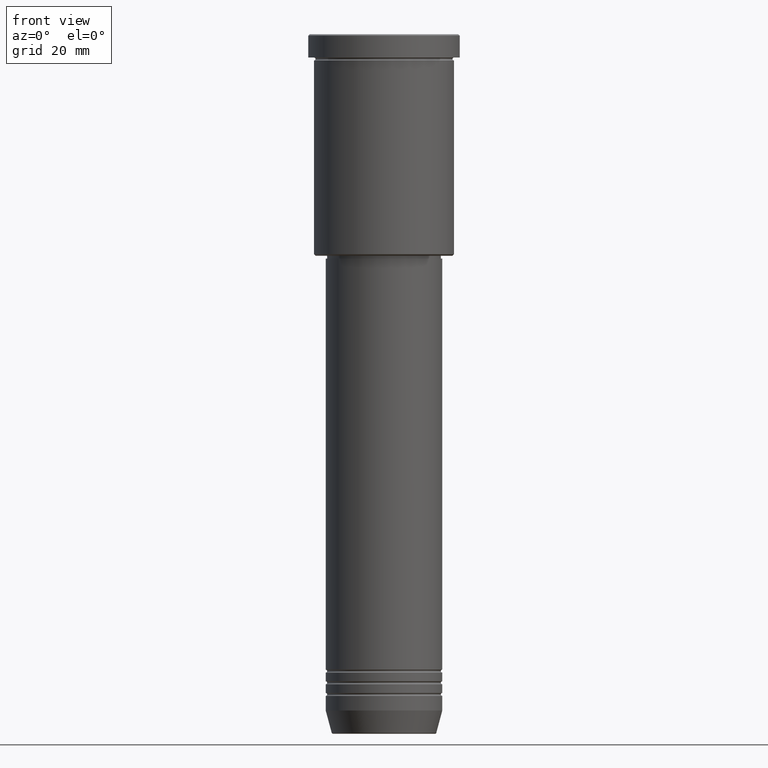
[diagram: clean part render]
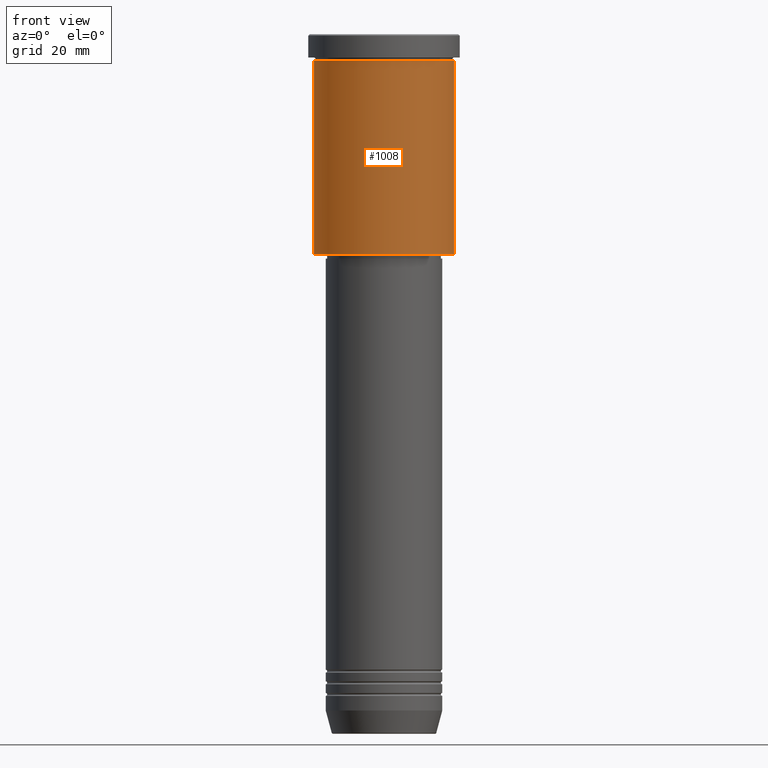
[diagram: same view with one face highlighted and labeled with its STEP entity id]
A machine part, front view. The second image highlights one B-rep face of the part: STEP entity #1008.
In plain terms, the highlighted cylindrical surface (partial cylindrical patch) has radius 24 mm, axis along (-0, -0, 1).
Its self-contained STEP definition (entity closure, byte-faithful):
#26 = LINE ( 'NONE', #212, #863 ) ;
#65 = ORIENTED_EDGE ( 'NONE', *, *, #937, .T. ) ;
#67 = ORIENTED_EDGE ( 'NONE', *, *, #531, .T. ) ;
#98 = FACE_OUTER_BOUND ( 'NONE', #745, .T. ) ;
#109 = LINE ( 'NONE', #117, #709 ) ;
#117 = CARTESIAN_POINT ( 'NONE',  ( 24.00000000000000000, 0.000000000000000000, 0.000000000000000000 ) ) ;
#121 = DIRECTION ( 'NONE',  ( -0.000000000000000000, -0.000000000000000000, 1.000000000000000000 ) ) ;
#193 = CYLINDRICAL_SURFACE ( 'NONE', #450, 24.00000000000000000 ) ;
#201 = DIRECTION ( 'NONE',  ( -0.000000000000000000, -0.000000000000000000, 1.000000000000000000 ) ) ;
#212 = CARTESIAN_POINT ( 'NONE',  ( -24.00000000000000000, 2.939152317953647894E-15, 0.000000000000000000 ) ) ;
#258 = CARTESIAN_POINT ( 'NONE',  ( -24.00000000000000000, 2.939152317953647894E-15, -75.50000000000000000 ) ) ;
#434 = CIRCLE ( 'NONE', #830, 24.00000000000000000 ) ;
#440 = VERTEX_POINT ( 'NONE', #1083 ) ;
#450 = AXIS2_PLACEMENT_3D ( 'NONE', #471, #458, #839 ) ;
#452 = ORIENTED_EDGE ( 'NONE', *, *, #964, .F. ) ;
#458 = DIRECTION ( 'NONE',  ( -0.000000000000000000, -0.000000000000000000, 1.000000000000000000 ) ) ;
#461 = DIRECTION ( 'NONE',  ( -0.000000000000000000, -0.000000000000000000, 1.000000000000000000 ) ) ;
#471 = CARTESIAN_POINT ( 'NONE',  ( 0.000000000000000000, 0.000000000000000000, 0.000000000000000000 ) ) ;
#473 = AXIS2_PLACEMENT_3D ( 'NONE', #933, #201, #747 ) ;
#477 = DIRECTION ( 'NONE',  ( -0.000000000000000000, -0.000000000000000000, 1.000000000000000000 ) ) ;
#497 = EDGE_CURVE ( 'NONE', #887, #440, #434, .T. ) ;
#531 = EDGE_CURVE ( 'NONE', #780, #962, #996, .T. ) ;
#661 = DIRECTION ( 'NONE',  ( 1.000000000000000000, 0.000000000000000000, 0.000000000000000000 ) ) ;
#709 = VECTOR ( 'NONE', #477, 1000.000000000000000 ) ;
#736 = ORIENTED_EDGE ( 'NONE', *, *, #497, .F. ) ;
#745 = EDGE_LOOP ( 'NONE', ( #452, #67, #65, #736 ) ) ;
#747 = DIRECTION ( 'NONE',  ( -1.000000000000000000, 0.000000000000000000, 0.000000000000000000 ) ) ;
#780 = VERTEX_POINT ( 'NONE', #258 ) ;
#830 = AXIS2_PLACEMENT_3D ( 'NONE', #925, #461, #661 ) ;
#839 = DIRECTION ( 'NONE',  ( 1.000000000000000000, 0.000000000000000000, 0.000000000000000000 ) ) ;
#863 = VECTOR ( 'NONE', #121, 1000.000000000000000 ) ;
#887 = VERTEX_POINT ( 'NONE', #990 ) ;
#925 = CARTESIAN_POINT ( 'NONE',  ( 0.000000000000000000, 0.000000000000000000, -8.999999999999994671 ) ) ;
#933 = CARTESIAN_POINT ( 'NONE',  ( 0.000000000000000000, 0.000000000000000000, -75.50000000000000000 ) ) ;
#937 = EDGE_CURVE ( 'NONE', #962, #440, #109, .T. ) ;
#962 = VERTEX_POINT ( 'NONE', #1101 ) ;
#964 = EDGE_CURVE ( 'NONE', #780, #887, #26, .T. ) ;
#990 = CARTESIAN_POINT ( 'NONE',  ( -24.00000000000000000, 2.939152317953647894E-15, -8.999999999999994671 ) ) ;
#996 = CIRCLE ( 'NONE', #473, 24.00000000000000000 ) ;
#1008 = ADVANCED_FACE ( 'NONE', ( #98 ), #193, .T. ) ;
#1083 = CARTESIAN_POINT ( 'NONE',  ( 24.00000000000000000, 0.000000000000000000, -8.999999999999994671 ) ) ;
#1101 = CARTESIAN_POINT ( 'NONE',  ( 24.00000000000000000, 0.000000000000000000, -75.50000000000000000 ) ) ;